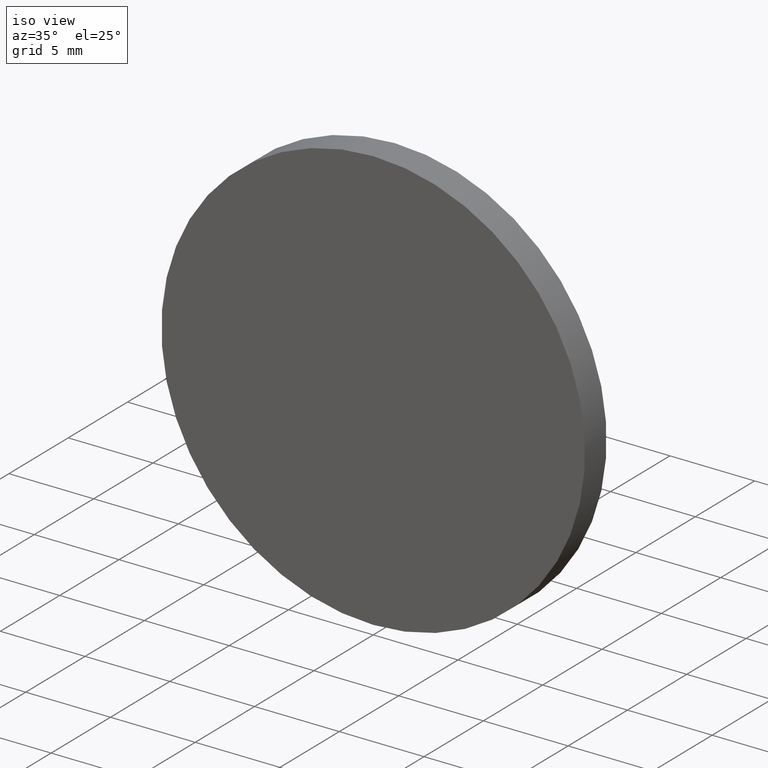
[diagram: clean part render]
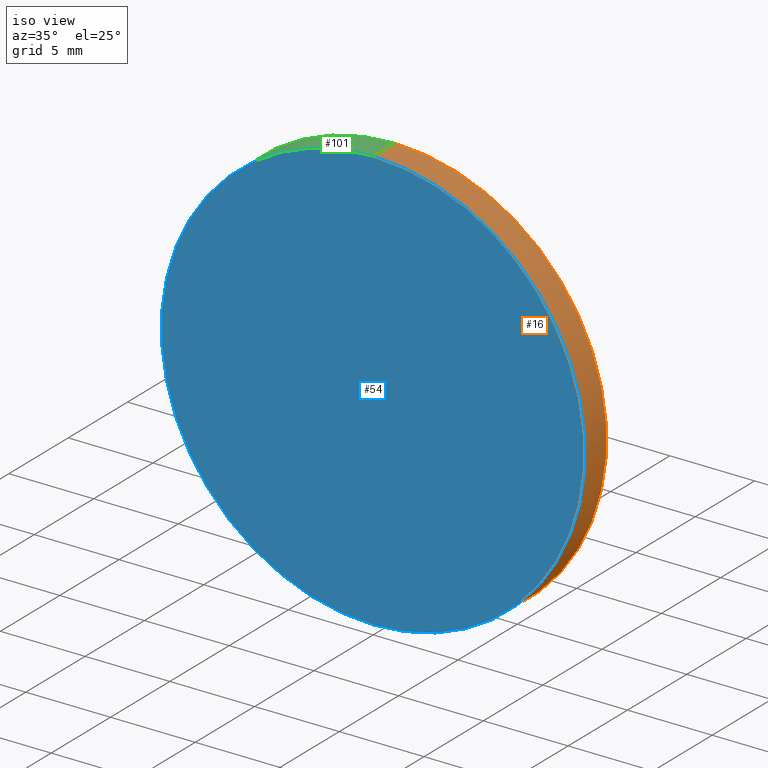
[diagram: same view with three faces highlighted in distinct colors, each labeled with its STEP entity id]
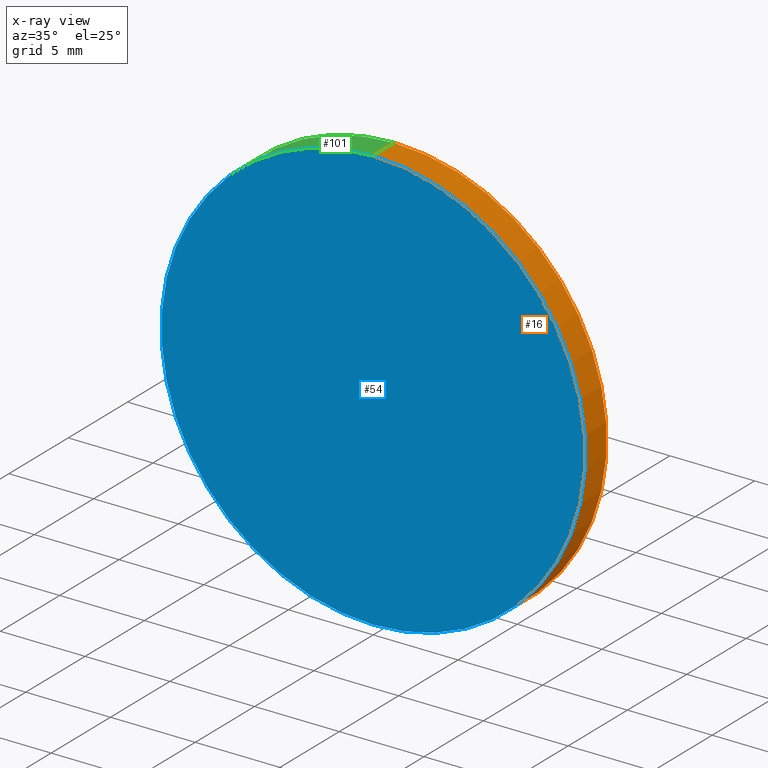
[diagram: x-ray of the same camera — body ghosted, the three highlighted faces saturated]
A machine part, iso view with three faces highlighted in distinct colors.
The next image is the same camera in x-ray (body ghosted, the three faces saturated) — at least one of them is partly hidden behind the body in this view.
Their STEP definitions:

[orange] entity #16 — the highlighted cylindrical surface (partial cylindrical patch) has radius 12.5 mm, axis along (-0, -1, -0).
#8 = AXIS2_PLACEMENT_3D ( 'NONE', #47, #119, #57 ) ;
#11 = CARTESIAN_POINT ( 'NONE',  ( 1.530808498934191500E-015, 0.0000000000000000000, 12.50000000000000000 ) ) ;
#13 = VERTEX_POINT ( 'NONE', #115 ) ;
#14 = LINE ( 'NONE', #63, #22 ) ;
#16 = ADVANCED_FACE ( 'NONE', ( #88 ), #41, .T. ) ;
#22 = VECTOR ( 'NONE', #65, 1000.000000000000000 ) ;
#29 = ORIENTED_EDGE ( 'NONE', *, *, #112, .F. ) ;
#30 = CARTESIAN_POINT ( 'NONE',  ( 0.0000000000000000000, 1.820000000000000100, -12.50000000000000000 ) ) ;
#35 = ORIENTED_EDGE ( 'NONE', *, *, #66, .F. ) ;
#36 = DIRECTION ( 'NONE',  ( 0.0000000000000000000, 0.0000000000000000000, 1.000000000000000000 ) ) ;
#38 = VECTOR ( 'NONE', #111, 1000.000000000000000 ) ;
#41 = CYLINDRICAL_SURFACE ( 'NONE', #8, 12.50000000000000000 ) ;
#42 = CARTESIAN_POINT ( 'NONE',  ( 1.530808498934191500E-015, 1.820000000000000100, 12.50000000000000000 ) ) ;
#43 = CARTESIAN_POINT ( 'NONE',  ( 0.0000000000000000000, 1.820000000000000100, -12.50000000000000000 ) ) ;
#44 = CARTESIAN_POINT ( 'NONE',  ( 0.0000000000000000000, 0.0000000000000000000, 0.0000000000000000000 ) ) ;
#47 = CARTESIAN_POINT ( 'NONE',  ( 0.0000000000000000000, 1.820000000000000100, 0.0000000000000000000 ) ) ;
#49 = EDGE_LOOP ( 'NONE', ( #29, #79, #139, #35 ) ) ;
#53 = CIRCLE ( 'NONE', #130, 12.50000000000000000 ) ;
#55 = VERTEX_POINT ( 'NONE', #11 ) ;
#57 = DIRECTION ( 'NONE',  ( 0.0000000000000000000, 0.0000000000000000000, -1.000000000000000000 ) ) ;
#63 = CARTESIAN_POINT ( 'NONE',  ( 1.530808498934191500E-015, 1.820000000000000100, 12.50000000000000000 ) ) ;
#65 = DIRECTION ( 'NONE',  ( -0.0000000000000000000, -1.000000000000000000, -0.0000000000000000000 ) ) ;
#66 = EDGE_CURVE ( 'NONE', #80, #13, #123, .T. ) ;
#74 = CIRCLE ( 'NONE', #138, 12.50000000000000000 ) ;
#79 = ORIENTED_EDGE ( 'NONE', *, *, #99, .T. ) ;
#80 = VERTEX_POINT ( 'NONE', #30 ) ;
#87 = DIRECTION ( 'NONE',  ( 0.0000000000000000000, 0.0000000000000000000, 1.000000000000000000 ) ) ;
#88 = FACE_OUTER_BOUND ( 'NONE', #49, .T. ) ;
#89 = VERTEX_POINT ( 'NONE', #42 ) ;
#94 = DIRECTION ( 'NONE',  ( 0.0000000000000000000, 1.000000000000000000, 0.0000000000000000000 ) ) ;
#96 = CARTESIAN_POINT ( 'NONE',  ( 0.0000000000000000000, 1.820000000000000100, 0.0000000000000000000 ) ) ;
#99 = EDGE_CURVE ( 'NONE', #89, #55, #14, .T. ) ;
#111 = DIRECTION ( 'NONE',  ( -0.0000000000000000000, -1.000000000000000000, -0.0000000000000000000 ) ) ;
#112 = EDGE_CURVE ( 'NONE', #89, #80, #74, .T. ) ;
#115 = CARTESIAN_POINT ( 'NONE',  ( 0.0000000000000000000, 0.0000000000000000000, -12.50000000000000000 ) ) ;
#119 = DIRECTION ( 'NONE',  ( -0.0000000000000000000, -1.000000000000000000, -0.0000000000000000000 ) ) ;
#123 = LINE ( 'NONE', #43, #38 ) ;
#126 = EDGE_CURVE ( 'NONE', #55, #13, #53, .T. ) ;
#130 = AXIS2_PLACEMENT_3D ( 'NONE', #44, #94, #36 ) ;
#133 = DIRECTION ( 'NONE',  ( 0.0000000000000000000, 1.000000000000000000, 0.0000000000000000000 ) ) ;
#138 = AXIS2_PLACEMENT_3D ( 'NONE', #96, #133, #87 ) ;
#139 = ORIENTED_EDGE ( 'NONE', *, *, #126, .T. ) ;

[blue] entity #54 — the highlighted planar face has unit normal (0, 1, 0).
#1 = ORIENTED_EDGE ( 'NONE', *, *, #126, .F. ) ;
#11 = CARTESIAN_POINT ( 'NONE',  ( 1.530808498934191500E-015, 0.0000000000000000000, 12.50000000000000000 ) ) ;
#13 = VERTEX_POINT ( 'NONE', #115 ) ;
#21 = DIRECTION ( 'NONE',  ( 0.0000000000000000000, -0.0000000000000000000, 1.000000000000000000 ) ) ;
#32 = AXIS2_PLACEMENT_3D ( 'NONE', #45, #122, #37 ) ;
#36 = DIRECTION ( 'NONE',  ( 0.0000000000000000000, 0.0000000000000000000, 1.000000000000000000 ) ) ;
#37 = DIRECTION ( 'NONE',  ( 0.0000000000000000000, 0.0000000000000000000, 1.000000000000000000 ) ) ;
#44 = CARTESIAN_POINT ( 'NONE',  ( 0.0000000000000000000, 0.0000000000000000000, 0.0000000000000000000 ) ) ;
#45 = CARTESIAN_POINT ( 'NONE',  ( 0.0000000000000000000, 0.0000000000000000000, 0.0000000000000000000 ) ) ;
#52 = ORIENTED_EDGE ( 'NONE', *, *, #102, .F. ) ;
#53 = CIRCLE ( 'NONE', #130, 12.50000000000000000 ) ;
#54 = ADVANCED_FACE ( 'NONE', ( #95 ), #83, .F. ) ;
#55 = VERTEX_POINT ( 'NONE', #11 ) ;
#70 = DIRECTION ( 'NONE',  ( 0.0000000000000000000, 1.000000000000000000, 0.0000000000000000000 ) ) ;
#83 = PLANE ( 'NONE',  #84 ) ;
#84 = AXIS2_PLACEMENT_3D ( 'NONE', #131, #70, #21 ) ;
#86 = EDGE_LOOP ( 'NONE', ( #52, #1 ) ) ;
#94 = DIRECTION ( 'NONE',  ( 0.0000000000000000000, 1.000000000000000000, 0.0000000000000000000 ) ) ;
#95 = FACE_OUTER_BOUND ( 'NONE', #86, .T. ) ;
#102 = EDGE_CURVE ( 'NONE', #13, #55, #140, .T. ) ;
#115 = CARTESIAN_POINT ( 'NONE',  ( 0.0000000000000000000, 0.0000000000000000000, -12.50000000000000000 ) ) ;
#122 = DIRECTION ( 'NONE',  ( 0.0000000000000000000, 1.000000000000000000, 0.0000000000000000000 ) ) ;
#126 = EDGE_CURVE ( 'NONE', #55, #13, #53, .T. ) ;
#130 = AXIS2_PLACEMENT_3D ( 'NONE', #44, #94, #36 ) ;
#131 = CARTESIAN_POINT ( 'NONE',  ( 0.0000000000000000000, 0.0000000000000000000, 0.0000000000000000000 ) ) ;
#140 = CIRCLE ( 'NONE', #32, 12.50000000000000000 ) ;

[green] entity #101 — the highlighted cylindrical surface (partial cylindrical patch) has radius 12.5 mm, axis along (-0, -1, -0).
#4 = ORIENTED_EDGE ( 'NONE', *, *, #66, .T. ) ;
#9 = EDGE_LOOP ( 'NONE', ( #109, #114, #4, #116 ) ) ;
#10 = DIRECTION ( 'NONE',  ( 0.0000000000000000000, 0.0000000000000000000, -1.000000000000000000 ) ) ;
#11 = CARTESIAN_POINT ( 'NONE',  ( 1.530808498934191500E-015, 0.0000000000000000000, 12.50000000000000000 ) ) ;
#13 = VERTEX_POINT ( 'NONE', #115 ) ;
#14 = LINE ( 'NONE', #63, #22 ) ;
#18 = AXIS2_PLACEMENT_3D ( 'NONE', #62, #137, #98 ) ;
#22 = VECTOR ( 'NONE', #65, 1000.000000000000000 ) ;
#24 = CARTESIAN_POINT ( 'NONE',  ( 0.0000000000000000000, 1.820000000000000100, 0.0000000000000000000 ) ) ;
#30 = CARTESIAN_POINT ( 'NONE',  ( 0.0000000000000000000, 1.820000000000000100, -12.50000000000000000 ) ) ;
#32 = AXIS2_PLACEMENT_3D ( 'NONE', #45, #122, #37 ) ;
#37 = DIRECTION ( 'NONE',  ( 0.0000000000000000000, 0.0000000000000000000, 1.000000000000000000 ) ) ;
#38 = VECTOR ( 'NONE', #111, 1000.000000000000000 ) ;
#42 = CARTESIAN_POINT ( 'NONE',  ( 1.530808498934191500E-015, 1.820000000000000100, 12.50000000000000000 ) ) ;
#43 = CARTESIAN_POINT ( 'NONE',  ( 0.0000000000000000000, 1.820000000000000100, -12.50000000000000000 ) ) ;
#45 = CARTESIAN_POINT ( 'NONE',  ( 0.0000000000000000000, 0.0000000000000000000, 0.0000000000000000000 ) ) ;
#50 = CYLINDRICAL_SURFACE ( 'NONE', #108, 12.50000000000000000 ) ;
#55 = VERTEX_POINT ( 'NONE', #11 ) ;
#56 = CIRCLE ( 'NONE', #18, 12.50000000000000000 ) ;
#62 = CARTESIAN_POINT ( 'NONE',  ( 0.0000000000000000000, 1.820000000000000100, 0.0000000000000000000 ) ) ;
#63 = CARTESIAN_POINT ( 'NONE',  ( 1.530808498934191500E-015, 1.820000000000000100, 12.50000000000000000 ) ) ;
#65 = DIRECTION ( 'NONE',  ( -0.0000000000000000000, -1.000000000000000000, -0.0000000000000000000 ) ) ;
#66 = EDGE_CURVE ( 'NONE', #80, #13, #123, .T. ) ;
#76 = EDGE_CURVE ( 'NONE', #80, #89, #56, .T. ) ;
#77 = DIRECTION ( 'NONE',  ( -0.0000000000000000000, -1.000000000000000000, -0.0000000000000000000 ) ) ;
#78 = FACE_OUTER_BOUND ( 'NONE', #9, .T. ) ;
#80 = VERTEX_POINT ( 'NONE', #30 ) ;
#89 = VERTEX_POINT ( 'NONE', #42 ) ;
#98 = DIRECTION ( 'NONE',  ( 0.0000000000000000000, 0.0000000000000000000, 1.000000000000000000 ) ) ;
#99 = EDGE_CURVE ( 'NONE', #89, #55, #14, .T. ) ;
#101 = ADVANCED_FACE ( 'NONE', ( #78 ), #50, .T. ) ;
#102 = EDGE_CURVE ( 'NONE', #13, #55, #140, .T. ) ;
#108 = AXIS2_PLACEMENT_3D ( 'NONE', #24, #77, #10 ) ;
#109 = ORIENTED_EDGE ( 'NONE', *, *, #99, .F. ) ;
#111 = DIRECTION ( 'NONE',  ( -0.0000000000000000000, -1.000000000000000000, -0.0000000000000000000 ) ) ;
#114 = ORIENTED_EDGE ( 'NONE', *, *, #76, .F. ) ;
#115 = CARTESIAN_POINT ( 'NONE',  ( 0.0000000000000000000, 0.0000000000000000000, -12.50000000000000000 ) ) ;
#116 = ORIENTED_EDGE ( 'NONE', *, *, #102, .T. ) ;
#122 = DIRECTION ( 'NONE',  ( 0.0000000000000000000, 1.000000000000000000, 0.0000000000000000000 ) ) ;
#123 = LINE ( 'NONE', #43, #38 ) ;
#137 = DIRECTION ( 'NONE',  ( 0.0000000000000000000, 1.000000000000000000, 0.0000000000000000000 ) ) ;
#140 = CIRCLE ( 'NONE', #32, 12.50000000000000000 ) ;